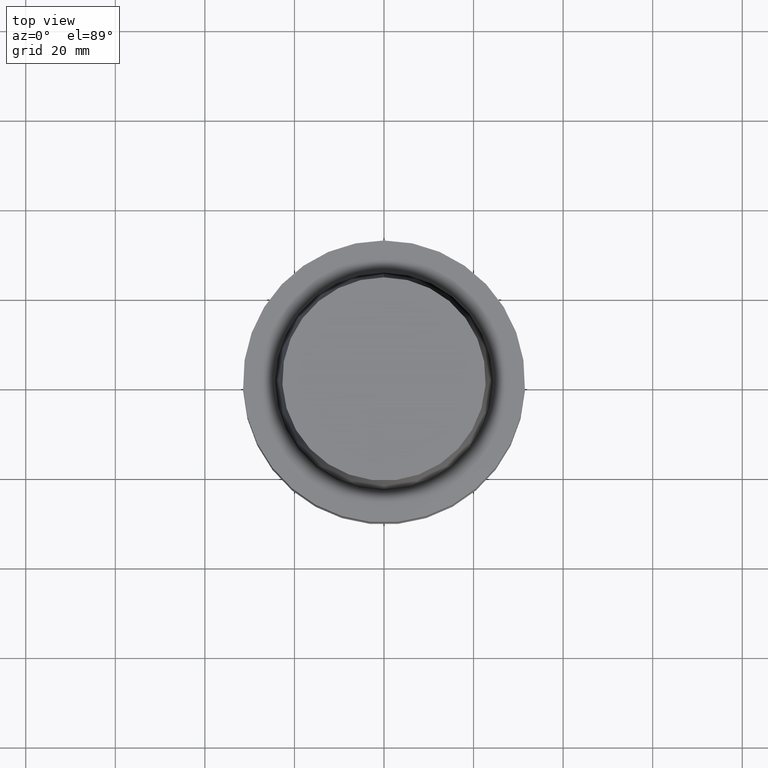
[diagram: clean part render]
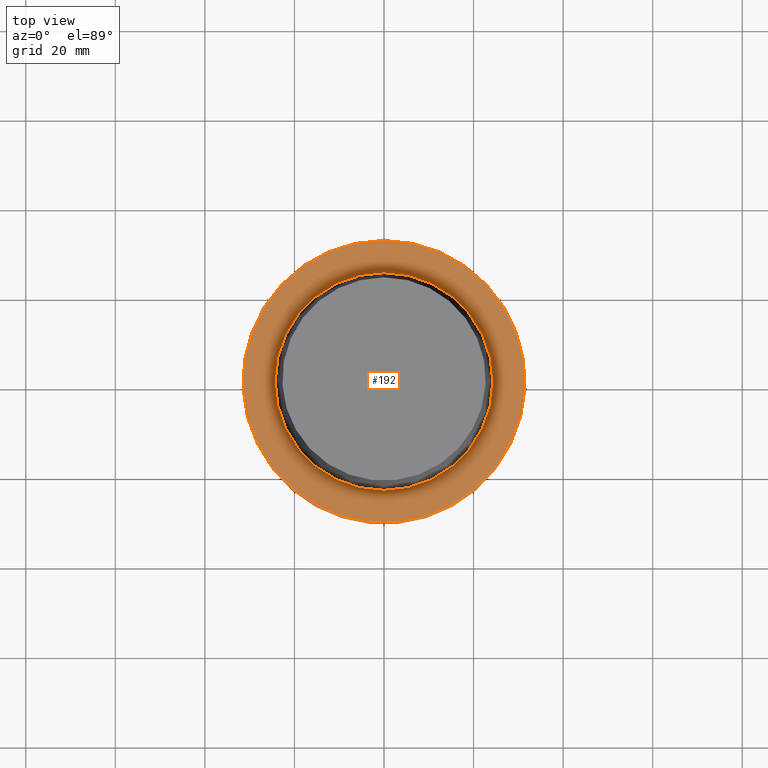
[diagram: same view with one face highlighted and labeled with its STEP entity id]
A machine part, top view. The second image highlights one B-rep face of the part: STEP entity #192.
In plain terms, the highlighted planar face has unit normal (-0, -0, 1).
Its self-contained STEP definition (entity closure, byte-faithful):
#175=EDGE_CURVE('Unnamed[1]',#362,#362,#363,.T.);
#184=EDGE_CURVE('Unnamed[1]',#376,#376,#377,.T.);
#192=ADVANCED_FACE('Unnamed[1]',(#388,#389),#390,.T.);
#362=VERTEX_POINT('',#589);
#363=CIRCLE('',#590,31.5000000000001);
#376=VERTEX_POINT('',#607);
#377=CIRCLE('',#608,24.315);
#388=FACE_BOUND('',#622,.T.);
#389=FACE_OUTER_BOUND('',#623,.T.);
#390=PLANE('',#624);
#589=CARTESIAN_POINT('',(-3.88267476788467E-031,31.5000000000001,3.85763741731417E-015));
#590=AXIS2_PLACEMENT_3D('',#793,#794,#795);
#607=CARTESIAN_POINT('',(-2.99705514225764E-031,24.315,2.97772869212679E-015));
#608=AXIS2_PLACEMENT_3D('',#808,#809,#810);
#622=EDGE_LOOP('',(#821));
#623=EDGE_LOOP('',(#822));
#624=AXIS2_PLACEMENT_3D('',#823,#824,#825);
#793=CARTESIAN_POINT('',(0.0,0.0,0.0));
#794=DIRECTION('',(-6.12323399573677E-017,-1.22464679914735E-016,1.0));
#795=DIRECTION('',(-1.23259516440783E-032,1.0,1.22464679914735E-016));
#808=CARTESIAN_POINT('',(0.0,0.0,0.0));
#809=DIRECTION('',(-6.12323399573677E-017,-1.22464679914735E-016,1.0));
#810=DIRECTION('',(-1.23259516440783E-032,1.0,1.22464679914735E-016));
#821=ORIENTED_EDGE('',*,*,#184,.F.);
#822=ORIENTED_EDGE('',*,*,#175,.T.);
#823=CARTESIAN_POINT('',(-3.43986495507116E-031,27.9075,3.41768305472048E-015));
#824=DIRECTION('',(-6.12323399573677E-017,-1.22464679914735E-016,1.0));
#825=DIRECTION('',(-1.23259516440783E-032,1.0,1.22464679914735E-016));